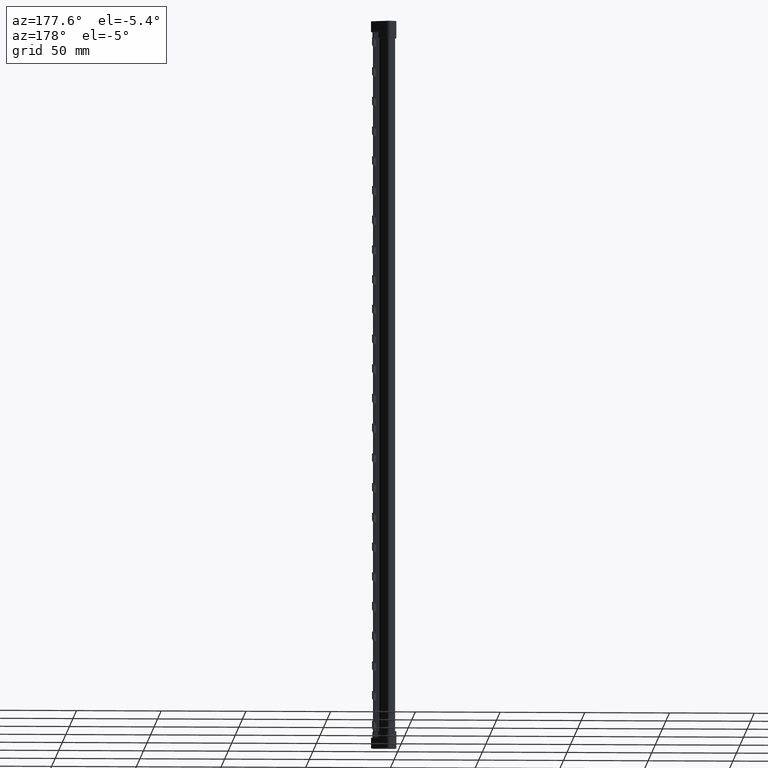
[diagram: clean part render]
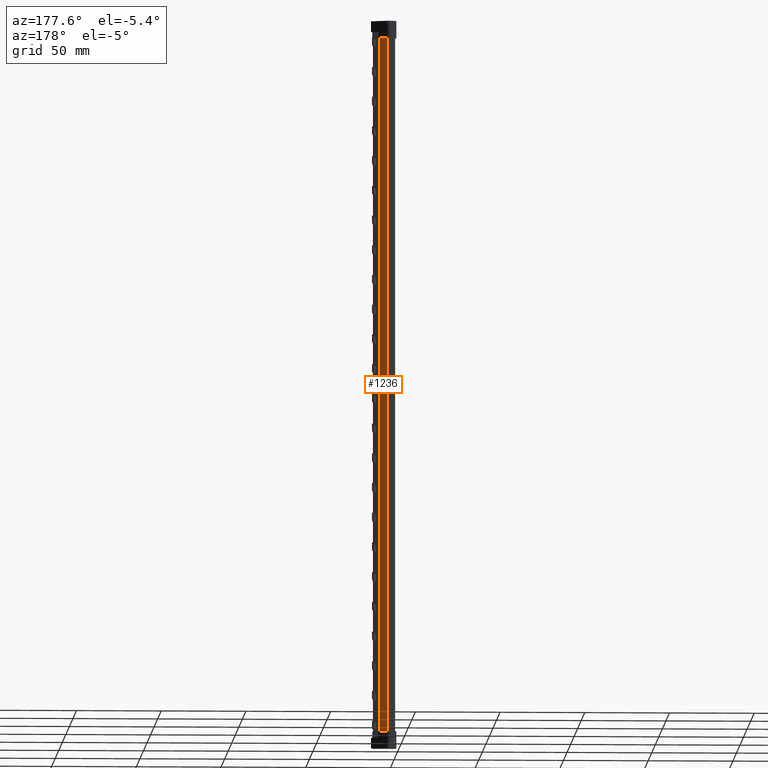
[diagram: same view with one face highlighted and labeled with its STEP entity id]
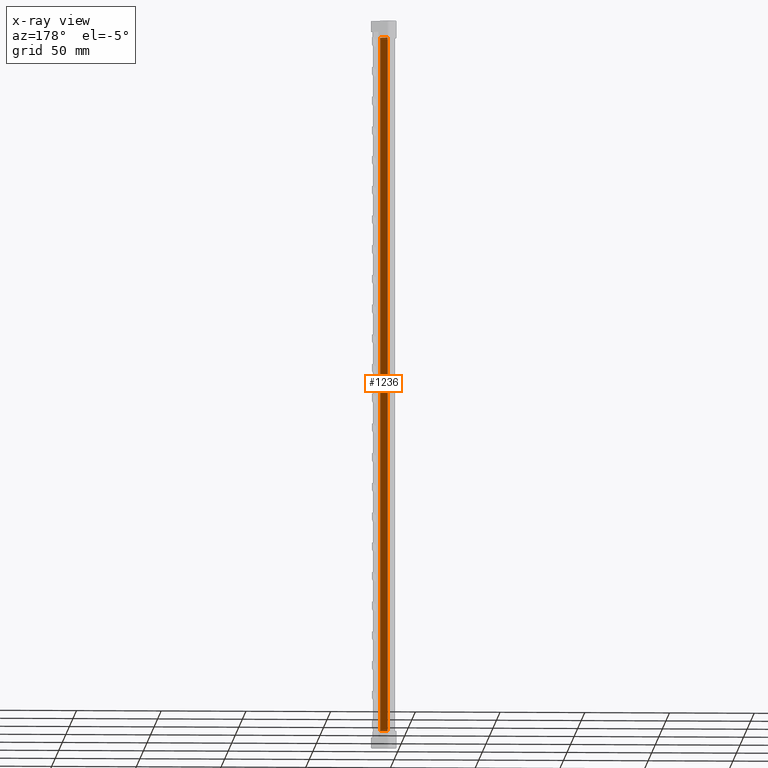
[diagram: x-ray of the same camera — body ghosted, the highlighted face saturated]
A machine part, auxiliary view. The second image highlights one B-rep face of the part: STEP entity #1236.
The next image is the same camera in x-ray: the body ghosted, the highlighted face saturated — about 0% of this face is hidden behind the body in this view.
In plain terms, the highlighted planar face has unit normal (-0.4021, -0.9156, 0).
Its self-contained STEP definition (entity closure, byte-faithful):
#1236 = ADVANCED_FACE ( 'NONE', ( #13241 ), #13257, .F. ) ;
#3951 = AXIS2_PLACEMENT_3D ( 'NONE', #13252, #13276, #13239 ) ;
#4832 = EDGE_LOOP ( 'NONE', ( #31852, #31857, #31911, #31878, #31902, #31859, #31860, #31886 ) ) ;
#9411 = CARTESIAN_POINT ( 'NONE',  ( 8.337551775103786900, 3.153583439744730200, -200.9000000000000100 ) ) ;
#9428 = CARTESIAN_POINT ( 'NONE',  ( 4.041246672134439800, 5.040290789019096000, -210.0000000000000000 ) ) ;
#9431 = CARTESIAN_POINT ( 'NONE',  ( 4.023610798727804500, 5.048035521101578400, -210.0000000000000000 ) ) ;
#9445 = CARTESIAN_POINT ( 'NONE',  ( 4.041246672134439800, 5.040290789019096000, 209.9000000000000100 ) ) ;
#10343 = CARTESIAN_POINT ( 'NONE',  ( 8.337551775103786900, 3.153583439744730200, 209.9000000000000100 ) ) ;
#10460 = CARTESIAN_POINT ( 'NONE',  ( 4.023610798727804500, 5.048035521101578400, 219.0000000000000000 ) ) ;
#10496 = CARTESIAN_POINT ( 'NONE',  ( 4.041246672134439800, 5.040290789019096000, 219.0000000000000000 ) ) ;
#10579 = CARTESIAN_POINT ( 'NONE',  ( 4.041246672134439800, 5.040290789019096000, -200.9000000000000100 ) ) ;
#13239 = DIRECTION ( 'NONE',  ( 0.9156028725539479000, -0.4020837969515297400, -8.730752358650188400E-019 ) ) ;
#13241 = FACE_OUTER_BOUND ( 'NONE', #4832, .T. ) ;
#13252 = CARTESIAN_POINT ( 'NONE',  ( 8.337549575065260400, 3.153584405884049400, 219.0000000000000000 ) ) ;
#13257 = PLANE ( 'NONE',  #3951 ) ;
#13276 = DIRECTION ( 'NONE',  ( -0.4020837969515297400, -0.9156028725539479000, 9.339969566632776300E-019 ) ) ;
#22983 = LINE ( 'NONE', #23020, #30890 ) ;
#23018 = DIRECTION ( 'NONE',  ( -1.174935236590071000E-018, -5.041208906165829300E-019, -1.000000000000000000 ) ) ;
#23020 = CARTESIAN_POINT ( 'NONE',  ( 8.337549575065260400, 3.153584405884049400, 219.0000000000000000 ) ) ;
#23079 = DIRECTION ( 'NONE',  ( 1.174935236590071400E-018, 5.041208906165829300E-019, 1.000000000000000000 ) ) ;
#23080 = DIRECTION ( 'NONE',  ( 0.9156028725539479000, -0.4020837969515297400, 3.538409553348890900E-026 ) ) ;
#23088 = LINE ( 'NONE', #23121, #30910 ) ;
#23118 = CARTESIAN_POINT ( 'NONE',  ( 8.337549575065260400, 3.153584405884049000, -210.0000000000000000 ) ) ;
#23121 = CARTESIAN_POINT ( 'NONE',  ( 4.023610798727805400, 5.048035521101578400, 219.0000000000000000 ) ) ;
#23125 = LINE ( 'NONE', #23118, #30868 ) ;
#23190 = DIRECTION ( 'NONE',  ( -0.9156028725539471200, 0.4020837969515314000, -3.538409553349299000E-026 ) ) ;
#23208 = CARTESIAN_POINT ( 'NONE',  ( 9.056430818341246100, 2.837890223921217400, -200.9000000000000100 ) ) ;
#23210 = LINE ( 'NONE', #23208, #31085 ) ;
#25213 = LINE ( 'NONE', #25310, #30873 ) ;
#25253 = CARTESIAN_POINT ( 'NONE',  ( 2.089768278228537800, 5.897275695697959300, 209.9000000000000100 ) ) ;
#25270 = DIRECTION ( 'NONE',  ( -0.9156028725539479000, 0.4020837969515297400, 3.538409553348890900E-026 ) ) ;
#25306 = LINE ( 'NONE', #25253, #30852 ) ;
#25310 = CARTESIAN_POINT ( 'NONE',  ( 4.041246672134439800, 5.040290789019096000, -204.5000000000000600 ) ) ;
#25311 = DIRECTION ( 'NONE',  ( 3.864550688587075300E-026, -3.939912114750719300E-031, -1.000000000000000000 ) ) ;
#25717 = CARTESIAN_POINT ( 'NONE',  ( 4.041246672134439800, 5.040290789019096000, 213.5000000000000600 ) ) ;
#25730 = LINE ( 'NONE', #25717, #30785 ) ;
#25734 = DIRECTION ( 'NONE',  ( 3.864550688587075300E-026, -3.939912114750719300E-031, 1.000000000000000000 ) ) ;
#26424 = EDGE_CURVE ( 'NONE', #35143, #35138, #30252, .T. ) ;
#26520 = EDGE_CURVE ( 'NONE', #35266, #35138, #25730, .T. ) ;
#26566 = EDGE_CURVE ( 'NONE', #35092, #35266, #25306, .T. ) ;
#26579 = EDGE_CURVE ( 'NONE', #35239, #35342, #25213, .T. ) ;
#26605 = EDGE_CURVE ( 'NONE', #35092, #35335, #22983, .T. ) ;
#26619 = EDGE_CURVE ( 'NONE', #35269, #35342, #23125, .T. ) ;
#26623 = EDGE_CURVE ( 'NONE', #35269, #35143, #23088, .T. ) ;
#26637 = EDGE_CURVE ( 'NONE', #35335, #35239, #23210, .T. ) ;
#30243 = DIRECTION ( 'NONE',  ( 0.9156028725539479000, -0.4020837969515297400, -3.538409553348890900E-026 ) ) ;
#30252 = LINE ( 'NONE', #30269, #30685 ) ;
#30269 = CARTESIAN_POINT ( 'NONE',  ( 12.90000028084913100, 1.150000146620297600, 219.0000000000000000 ) ) ;
#30685 = VECTOR ( 'NONE', #30243, 1000.000000000000000 ) ;
#30785 = VECTOR ( 'NONE', #25734, 1000.000000000000000 ) ;
#30852 = VECTOR ( 'NONE', #25270, 1000.000000000000000 ) ;
#30868 = VECTOR ( 'NONE', #23080, 1000.000000000000000 ) ;
#30873 = VECTOR ( 'NONE', #25311, 1000.000000000000000 ) ;
#30890 = VECTOR ( 'NONE', #23018, 1000.000000000000000 ) ;
#30910 = VECTOR ( 'NONE', #23079, 1000.000000000000000 ) ;
#31085 = VECTOR ( 'NONE', #23190, 1000.000000000000200 ) ;
#31852 = ORIENTED_EDGE ( 'NONE', *, *, #26424, .T. ) ;
#31857 = ORIENTED_EDGE ( 'NONE', *, *, #26520, .F. ) ;
#31859 = ORIENTED_EDGE ( 'NONE', *, *, #26579, .T. ) ;
#31860 = ORIENTED_EDGE ( 'NONE', *, *, #26619, .F. ) ;
#31878 = ORIENTED_EDGE ( 'NONE', *, *, #26605, .T. ) ;
#31886 = ORIENTED_EDGE ( 'NONE', *, *, #26623, .T. ) ;
#31902 = ORIENTED_EDGE ( 'NONE', *, *, #26637, .T. ) ;
#31911 = ORIENTED_EDGE ( 'NONE', *, *, #26566, .F. ) ;
#35092 = VERTEX_POINT ( 'NONE', #10343 ) ;
#35138 = VERTEX_POINT ( 'NONE', #10496 ) ;
#35143 = VERTEX_POINT ( 'NONE', #10460 ) ;
#35239 = VERTEX_POINT ( 'NONE', #10579 ) ;
#35266 = VERTEX_POINT ( 'NONE', #9445 ) ;
#35269 = VERTEX_POINT ( 'NONE', #9431 ) ;
#35335 = VERTEX_POINT ( 'NONE', #9411 ) ;
#35342 = VERTEX_POINT ( 'NONE', #9428 ) ;